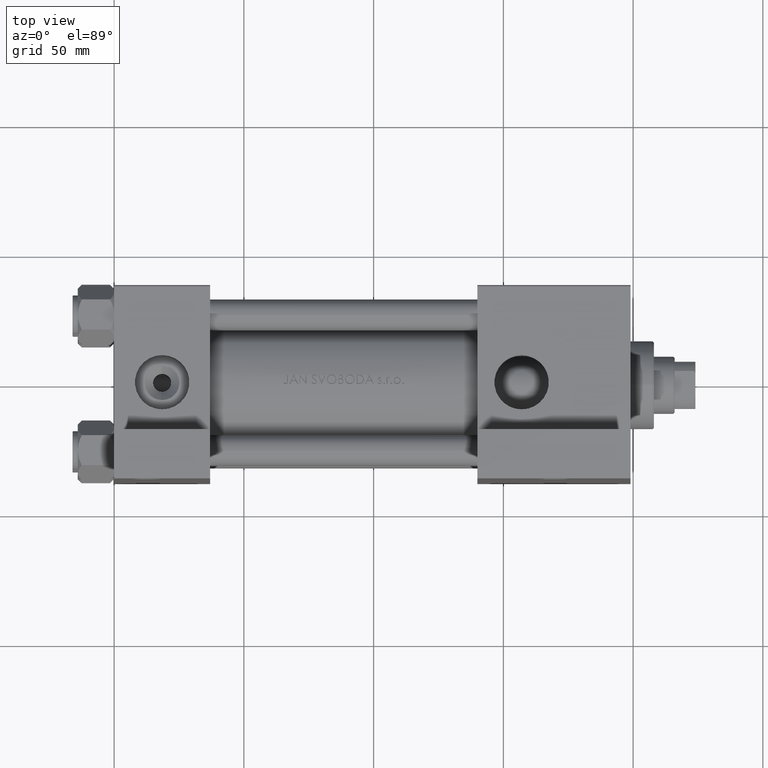
[diagram: clean part render]
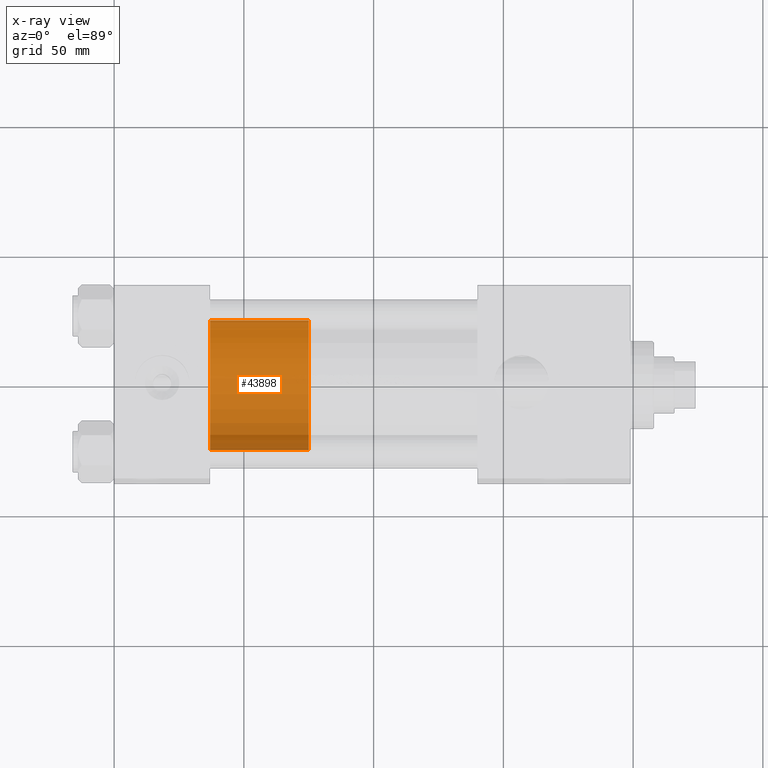
[diagram: x-ray — body ghosted, one internal face saturated and labeled with its STEP entity id]
A machine part, top view, then the same camera in x-ray: the body is ghosted and one INTERNAL B-rep face — a face not visible from any outside direction — is saturated and labeled: STEP entity #43898.
In plain terms, the highlighted cylindrical surface (partial cylindrical patch) has radius 25 mm, axis along (-1, 0, 0).
Its self-contained STEP definition (entity closure, byte-faithful):
#1588 = ORIENTED_EDGE ( 'NONE', *, *, #30720, .T. ) ;
#1950 = DIRECTION ( 'NONE',  ( -0.000000000000000000, -0.000000000000000000, -1.000000000000000000 ) ) ;
#2794 = DIRECTION ( 'NONE',  ( 0.000000000000000000, 0.000000000000000000, 1.000000000000000000 ) ) ;
#3034 = CARTESIAN_POINT ( 'NONE',  ( 0.000000000000000000, 0.000000000000000000, 0.000000000000000000 ) ) ;
#3112 = AXIS2_PLACEMENT_3D ( 'NONE', #3034, #2794, #30136 ) ;
#3282 = CARTESIAN_POINT ( 'NONE',  ( 25.00000000000000000, 3.061616997868383043E-15, 38.00000000000000000 ) ) ;
#3726 = CARTESIAN_POINT ( 'NONE',  ( -25.00000000000000000, 0.000000000000000000, 38.00000000000000000 ) ) ;
#4917 = LINE ( 'NONE', #28296, #34796 ) ;
#6592 = ORIENTED_EDGE ( 'NONE', *, *, #28655, .F. ) ;
#7143 = CARTESIAN_POINT ( 'NONE',  ( 0.000000000000000000, 0.000000000000000000, 38.00000000000000000 ) ) ;
#12638 = EDGE_CURVE ( 'NONE', #37682, #13438, #16093, .T. ) ;
#13438 = VERTEX_POINT ( 'NONE', #3726 ) ;
#16093 = CIRCLE ( 'NONE', #44727, 25.00000000000000000 ) ;
#16623 = VECTOR ( 'NONE', #29904, 1000.000000000000000 ) ;
#19330 = ORIENTED_EDGE ( 'NONE', *, *, #12638, .F. ) ;
#23547 = CARTESIAN_POINT ( 'NONE',  ( -25.00000000000000000, 0.000000000000000000, 0.000000000000000000 ) ) ;
#24084 = DIRECTION ( 'NONE',  ( -0.000000000000000000, -0.000000000000000000, -1.000000000000000000 ) ) ;
#26163 = LINE ( 'NONE', #3282, #16623 ) ;
#27760 = CIRCLE ( 'NONE', #3112, 25.00000000000000000 ) ;
#28296 = CARTESIAN_POINT ( 'NONE',  ( -25.00000000000000000, 0.000000000000000000, 38.00000000000000000 ) ) ;
#28325 = CYLINDRICAL_SURFACE ( 'NONE', #31196, 25.00000000000000000 ) ;
#28655 = EDGE_CURVE ( 'NONE', #13438, #29832, #4917, .T. ) ;
#29577 = VERTEX_POINT ( 'NONE', #30862 ) ;
#29832 = VERTEX_POINT ( 'NONE', #23547 ) ;
#29904 = DIRECTION ( 'NONE',  ( -0.000000000000000000, -0.000000000000000000, -1.000000000000000000 ) ) ;
#30136 = DIRECTION ( 'NONE',  ( 1.000000000000000000, 0.000000000000000000, 0.000000000000000000 ) ) ;
#30518 = DIRECTION ( 'NONE',  ( 1.000000000000000000, 0.000000000000000000, 0.000000000000000000 ) ) ;
#30663 = EDGE_CURVE ( 'NONE', #37682, #29577, #26163, .T. ) ;
#30720 = EDGE_CURVE ( 'NONE', #29577, #29832, #27760, .T. ) ;
#30862 = CARTESIAN_POINT ( 'NONE',  ( 25.00000000000000000, 3.061616997868383043E-15, 0.000000000000000000 ) ) ;
#31196 = AXIS2_PLACEMENT_3D ( 'NONE', #43269, #1950, #43760 ) ;
#34796 = VECTOR ( 'NONE', #24084, 1000.000000000000000 ) ;
#35422 = DIRECTION ( 'NONE',  ( 0.000000000000000000, 0.000000000000000000, 1.000000000000000000 ) ) ;
#36235 = CARTESIAN_POINT ( 'NONE',  ( 25.00000000000000000, 3.061616997868383043E-15, 38.00000000000000000 ) ) ;
#36278 = FACE_OUTER_BOUND ( 'NONE', #47355, .T. ) ;
#37682 = VERTEX_POINT ( 'NONE', #36235 ) ;
#38646 = ORIENTED_EDGE ( 'NONE', *, *, #30663, .T. ) ;
#43269 = CARTESIAN_POINT ( 'NONE',  ( 0.000000000000000000, 0.000000000000000000, 38.00000000000000000 ) ) ;
#43760 = DIRECTION ( 'NONE',  ( -1.000000000000000000, 0.000000000000000000, 0.000000000000000000 ) ) ;
#43898 = ADVANCED_FACE ( 'NONE', ( #36278 ), #28325, .T. ) ;
#44727 = AXIS2_PLACEMENT_3D ( 'NONE', #7143, #35422, #30518 ) ;
#47355 = EDGE_LOOP ( 'NONE', ( #19330, #38646, #1588, #6592 ) ) ;